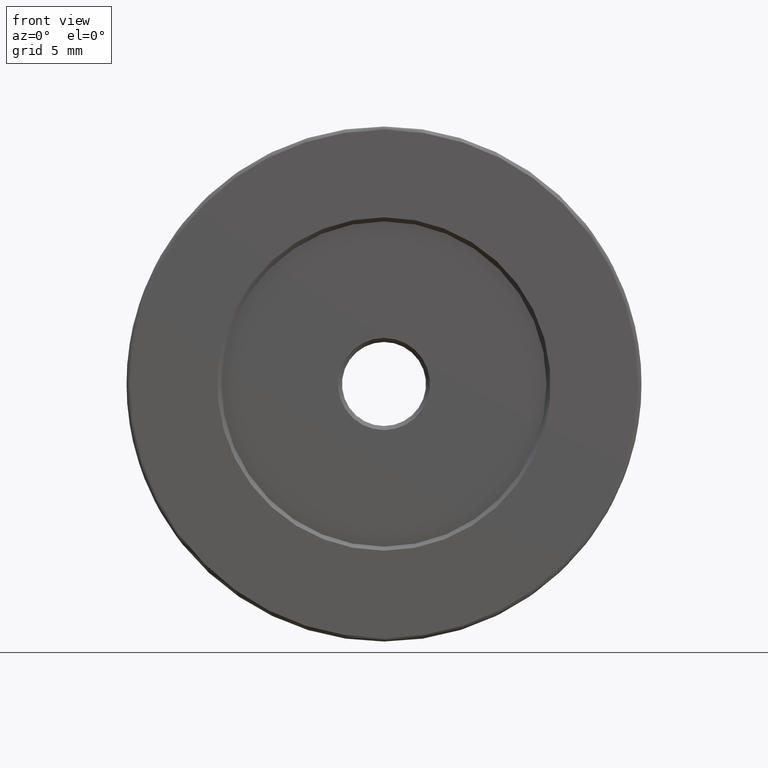
[diagram: clean part render]
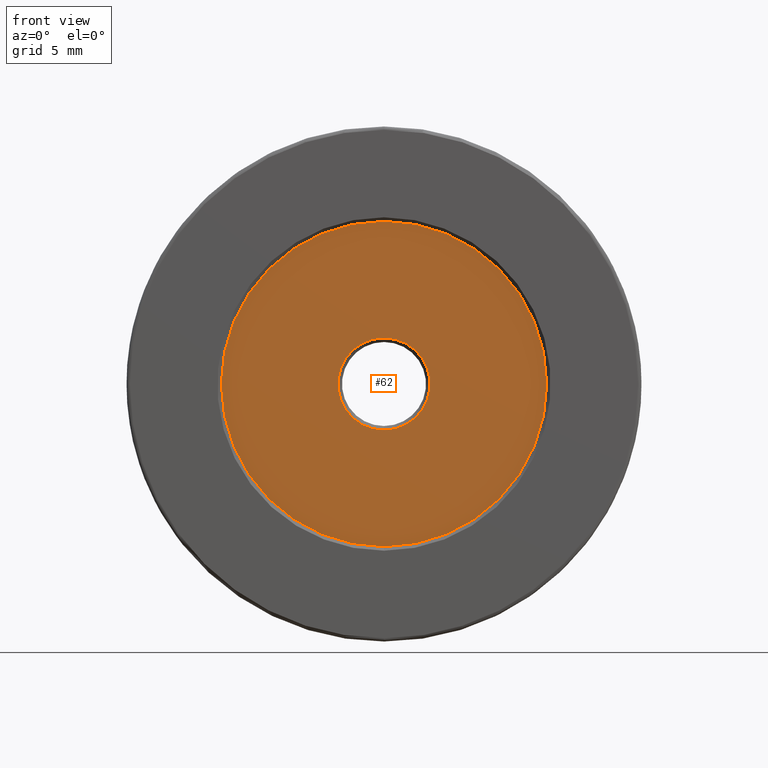
[diagram: same view with one face highlighted and labeled with its STEP entity id]
A machine part, front view. The second image highlights one B-rep face of the part: STEP entity #62.
In plain terms, the highlighted planar face has unit normal (0, -1, 0).
Its self-contained STEP definition (entity closure, byte-faithful):
#2 = EDGE_CURVE ( 'NONE', #474, #240, #572, .T. ) ;
#15 = PLANE ( 'NONE',  #408 ) ;
#50 = EDGE_CURVE ( 'NONE', #240, #474, #102, .T. ) ;
#62 = ADVANCED_FACE ( 'NONE', ( #112, #439 ), #15, .T. ) ;
#68 = DIRECTION ( 'NONE',  ( 0.000000000000000000, -1.000000000000000000, 0.000000000000000000 ) ) ;
#87 = ORIENTED_EDGE ( 'NONE', *, *, #50, .F. ) ;
#88 = CARTESIAN_POINT ( 'NONE',  ( -7.546808913101048510, -5.093595127302728898, 41.39999999999999858 ) ) ;
#102 = CIRCLE ( 'NONE', #186, 12.00000000000000355 ) ;
#112 = FACE_BOUND ( 'NONE', #234, .T. ) ;
#144 = AXIS2_PLACEMENT_3D ( 'NONE', #581, #446, #437 ) ;
#146 = EDGE_LOOP ( 'NONE', ( #279, #87 ) ) ;
#153 = DIRECTION ( 'NONE',  ( 0.000000000000000000, 0.000000000000000000, 1.000000000000000000 ) ) ;
#161 = EDGE_CURVE ( 'NONE', #590, #340, #167, .T. ) ;
#162 = DIRECTION ( 'NONE',  ( -0.000000000000000000, 1.000000000000000000, -0.000000000000000000 ) ) ;
#167 = CIRCLE ( 'NONE', #144, 3.400000000000000355 ) ;
#186 = AXIS2_PLACEMENT_3D ( 'NONE', #295, #262, #153 ) ;
#224 = CARTESIAN_POINT ( 'NONE',  ( -7.546808913101046734, -5.093595127302728898, 50.00000000000000000 ) ) ;
#231 = AXIS2_PLACEMENT_3D ( 'NONE', #494, #162, #436 ) ;
#234 = EDGE_LOOP ( 'NONE', ( #399, #600 ) ) ;
#240 = VERTEX_POINT ( 'NONE', #224 ) ;
#243 = CARTESIAN_POINT ( 'NONE',  ( -7.546808913101048510, -5.093595127302728898, 25.99999999999999645 ) ) ;
#262 = DIRECTION ( 'NONE',  ( -0.000000000000000000, 1.000000000000000000, -0.000000000000000000 ) ) ;
#279 = ORIENTED_EDGE ( 'NONE', *, *, #2, .F. ) ;
#295 = CARTESIAN_POINT ( 'NONE',  ( -7.546808913101048510, -5.093595127302728898, 38.00000000000000000 ) ) ;
#297 = AXIS2_PLACEMENT_3D ( 'NONE', #412, #313, #406 ) ;
#299 = EDGE_CURVE ( 'NONE', #340, #590, #559, .T. ) ;
#313 = DIRECTION ( 'NONE',  ( -0.000000000000000000, 1.000000000000000000, -0.000000000000000000 ) ) ;
#340 = VERTEX_POINT ( 'NONE', #88 ) ;
#353 = CARTESIAN_POINT ( 'NONE',  ( -7.546808913101048510, -5.093595127302728898, 38.00000000000000000 ) ) ;
#399 = ORIENTED_EDGE ( 'NONE', *, *, #161, .T. ) ;
#406 = DIRECTION ( 'NONE',  ( 0.000000000000000000, 0.000000000000000000, -1.000000000000000000 ) ) ;
#408 = AXIS2_PLACEMENT_3D ( 'NONE', #353, #68, #540 ) ;
#412 = CARTESIAN_POINT ( 'NONE',  ( -7.546808913101048510, -5.093595127302728898, 38.00000000000000000 ) ) ;
#436 = DIRECTION ( 'NONE',  ( 0.000000000000000000, 0.000000000000000000, 1.000000000000000000 ) ) ;
#437 = DIRECTION ( 'NONE',  ( 0.000000000000000000, 0.000000000000000000, -1.000000000000000000 ) ) ;
#439 = FACE_OUTER_BOUND ( 'NONE', #146, .T. ) ;
#446 = DIRECTION ( 'NONE',  ( -0.000000000000000000, 1.000000000000000000, -0.000000000000000000 ) ) ;
#474 = VERTEX_POINT ( 'NONE', #243 ) ;
#494 = CARTESIAN_POINT ( 'NONE',  ( -7.546808913101048510, -5.093595127302728898, 38.00000000000000000 ) ) ;
#540 = DIRECTION ( 'NONE',  ( 0.000000000000000000, 0.000000000000000000, 1.000000000000000000 ) ) ;
#544 = CARTESIAN_POINT ( 'NONE',  ( -7.546808913101048510, -5.093595127302728898, 34.60000000000000142 ) ) ;
#559 = CIRCLE ( 'NONE', #297, 3.400000000000000355 ) ;
#572 = CIRCLE ( 'NONE', #231, 12.00000000000000355 ) ;
#581 = CARTESIAN_POINT ( 'NONE',  ( -7.546808913101048510, -5.093595127302728898, 38.00000000000000000 ) ) ;
#590 = VERTEX_POINT ( 'NONE', #544 ) ;
#600 = ORIENTED_EDGE ( 'NONE', *, *, #299, .T. ) ;